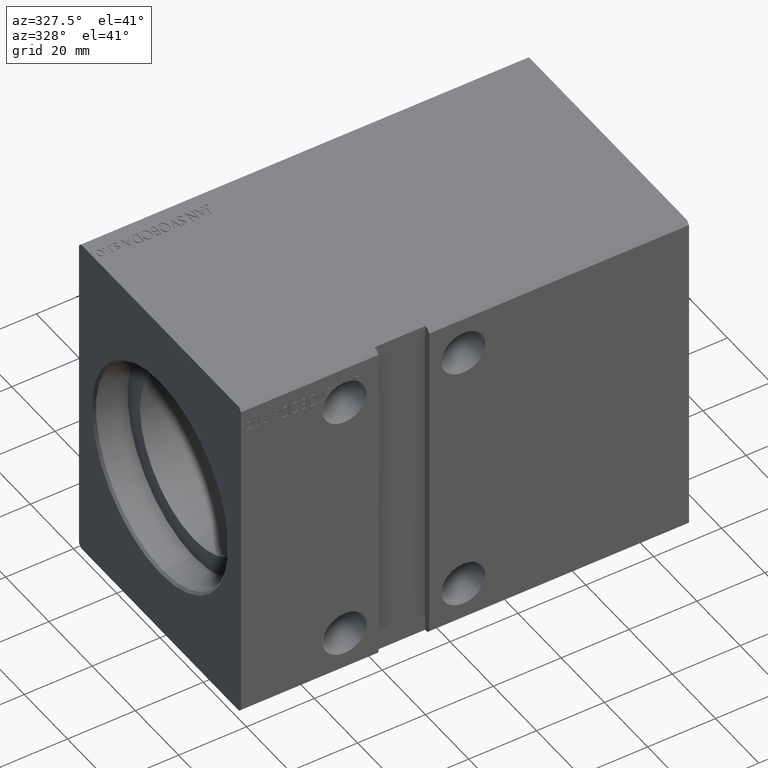
[diagram: clean part render]
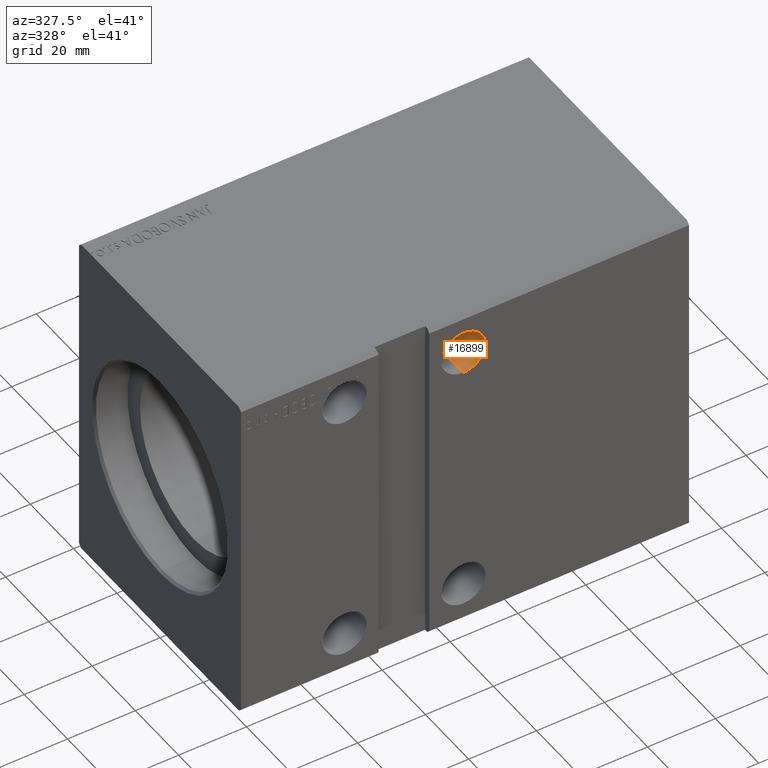
[diagram: same view with one face highlighted and labeled with its STEP entity id]
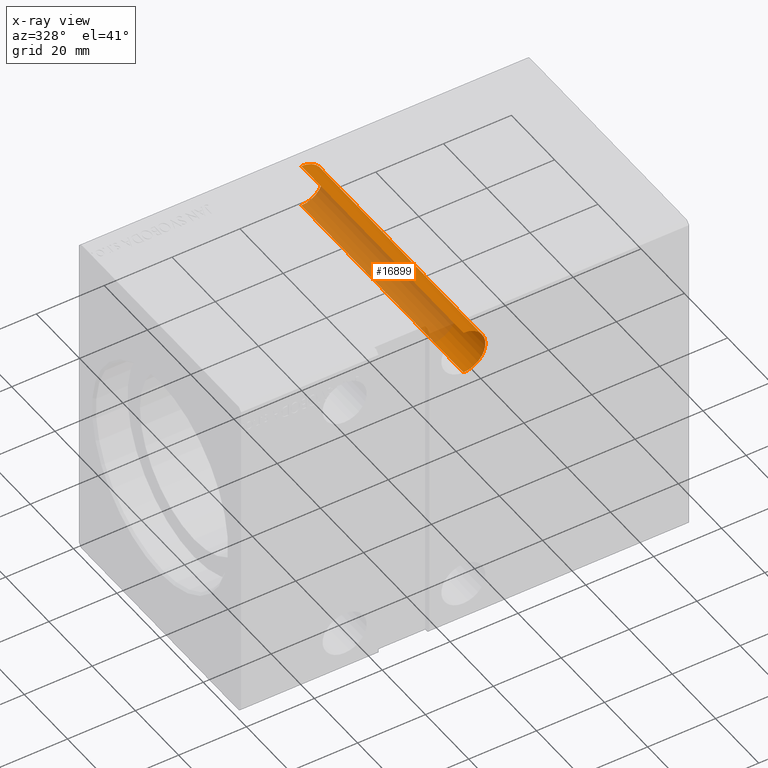
[diagram: x-ray of the same camera — body ghosted, the highlighted face saturated]
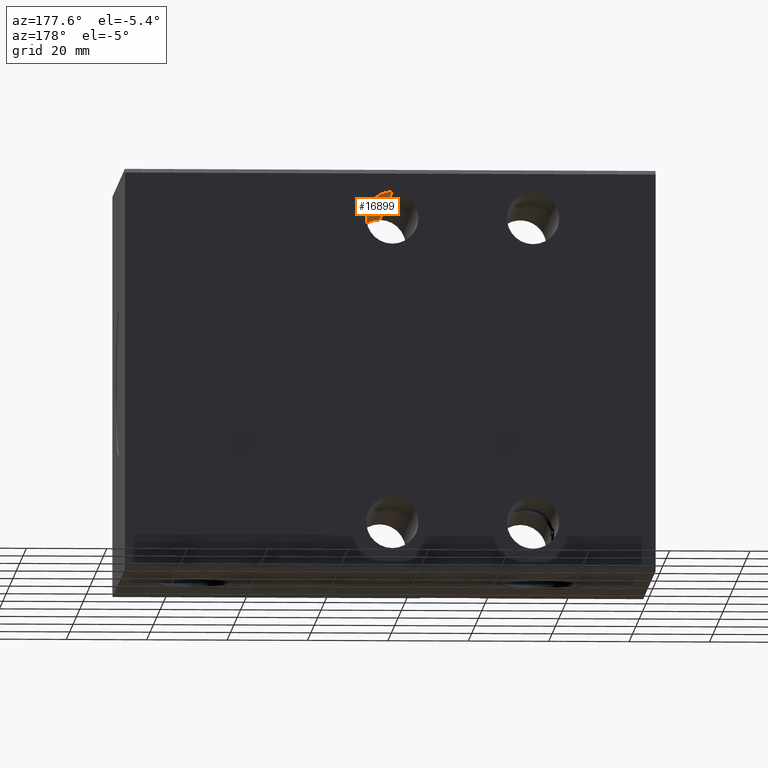
[diagram: same view with one face highlighted and labeled with its STEP entity id]
A machine part, auxiliary view. The second image highlights one B-rep face of the part: STEP entity #16899.
The next image is the same camera in x-ray: the body ghosted, the highlighted face saturated — about 55% of this face is hidden behind the body in this view.
A second angle (auxiliary view) of the same face is appended — the face is thin or edge-on in the first view.
In plain terms, the highlighted cylindrical surface (edge-blend (fillet) strip) has radius 6.5 mm, axis along (-0, -1, -0).
Its self-contained STEP definition (entity closure, byte-faithful):
#576 = VECTOR ( 'NONE', #18865, 1000.000000000000000 ) ;
#935 = CARTESIAN_POINT ( 'NONE',  ( 65.50000000000000000, -37.50000000000001421, 44.50000000000000000 ) ) ;
#5793 = DIRECTION ( 'NONE',  ( 0.000000000000000000, 0.000000000000000000, 1.000000000000000000 ) ) ;
#6656 = FACE_OUTER_BOUND ( 'NONE', #20005, .T. ) ;
#7806 = CIRCLE ( 'NONE', #32976, 6.499999999999999112 ) ;
#9748 = DIRECTION ( 'NONE',  ( 0.000000000000000000, 0.000000000000000000, -1.000000000000000000 ) ) ;
#9953 = DIRECTION ( 'NONE',  ( -0.000000000000000000, -1.000000000000000000, -5.507058653894625853E-17 ) ) ;
#10110 = CIRCLE ( 'NONE', #13423, 6.499999999999999112 ) ;
#12413 = CARTESIAN_POINT ( 'NONE',  ( 65.50000000000000000, 37.50000000000002842, 31.50000000000000711 ) ) ;
#13423 = AXIS2_PLACEMENT_3D ( 'NONE', #13747, #14159, #36576 ) ;
#13747 = CARTESIAN_POINT ( 'NONE',  ( 65.50000000000000000, 37.50000000000002842, 38.00000000000000711 ) ) ;
#14159 = DIRECTION ( 'NONE',  ( -0.000000000000000000, 1.000000000000000000, 5.507058653894625853E-17 ) ) ;
#14294 = VERTEX_POINT ( 'NONE', #34785 ) ;
#16141 = CARTESIAN_POINT ( 'NONE',  ( 65.50000000000000000, 37.50000000000002842, 44.50000000000000711 ) ) ;
#16748 = ORIENTED_EDGE ( 'NONE', *, *, #39268, .T. ) ;
#16899 = ADVANCED_FACE ( 'NONE', ( #6656 ), #19306, .F. ) ;
#18865 = DIRECTION ( 'NONE',  ( -0.000000000000000000, -1.000000000000000000, -5.507058653894625853E-17 ) ) ;
#19115 = EDGE_CURVE ( 'NONE', #14294, #27155, #7806, .T. ) ;
#19306 = CYLINDRICAL_SURFACE ( 'NONE', #26315, 6.499999999999999112 ) ;
#19503 = CARTESIAN_POINT ( 'NONE',  ( 65.50000000000000000, 37.50000000000002842, 38.00000000000000711 ) ) ;
#20005 = EDGE_LOOP ( 'NONE', ( #30147, #16748, #22849, #33077 ) ) ;
#20116 = VERTEX_POINT ( 'NONE', #12413 ) ;
#21146 = LINE ( 'NONE', #37730, #25247 ) ;
#21568 = LINE ( 'NONE', #40237, #576 ) ;
#22849 = ORIENTED_EDGE ( 'NONE', *, *, #34399, .T. ) ;
#25247 = VECTOR ( 'NONE', #37528, 1000.000000000000000 ) ;
#26315 = AXIS2_PLACEMENT_3D ( 'NONE', #19503, #9953, #9748 ) ;
#26881 = EDGE_CURVE ( 'NONE', #29138, #27155, #21568, .T. ) ;
#27155 = VERTEX_POINT ( 'NONE', #935 ) ;
#29138 = VERTEX_POINT ( 'NONE', #16141 ) ;
#30147 = ORIENTED_EDGE ( 'NONE', *, *, #26881, .F. ) ;
#32976 = AXIS2_PLACEMENT_3D ( 'NONE', #40220, #34202, #5793 ) ;
#33077 = ORIENTED_EDGE ( 'NONE', *, *, #19115, .T. ) ;
#34202 = DIRECTION ( 'NONE',  ( 0.000000000000000000, -1.000000000000000000, -0.000000000000000000 ) ) ;
#34399 = EDGE_CURVE ( 'NONE', #20116, #14294, #21146, .T. ) ;
#34785 = CARTESIAN_POINT ( 'NONE',  ( 65.50000000000000000, -37.50000000000001421, 31.50000000000000000 ) ) ;
#36576 = DIRECTION ( 'NONE',  ( 0.000000000000000000, 0.000000000000000000, 1.000000000000000000 ) ) ;
#37528 = DIRECTION ( 'NONE',  ( -0.000000000000000000, -1.000000000000000000, -5.507058653894625853E-17 ) ) ;
#37730 = CARTESIAN_POINT ( 'NONE',  ( 65.50000000000000000, 37.50000000000002842, 31.50000000000000711 ) ) ;
#39268 = EDGE_CURVE ( 'NONE', #29138, #20116, #10110, .T. ) ;
#40220 = CARTESIAN_POINT ( 'NONE',  ( 65.50000000000000000, -37.50000000000001421, 38.00000000000000000 ) ) ;
#40237 = CARTESIAN_POINT ( 'NONE',  ( 65.50000000000000000, 37.50000000000002842, 44.50000000000000711 ) ) ;